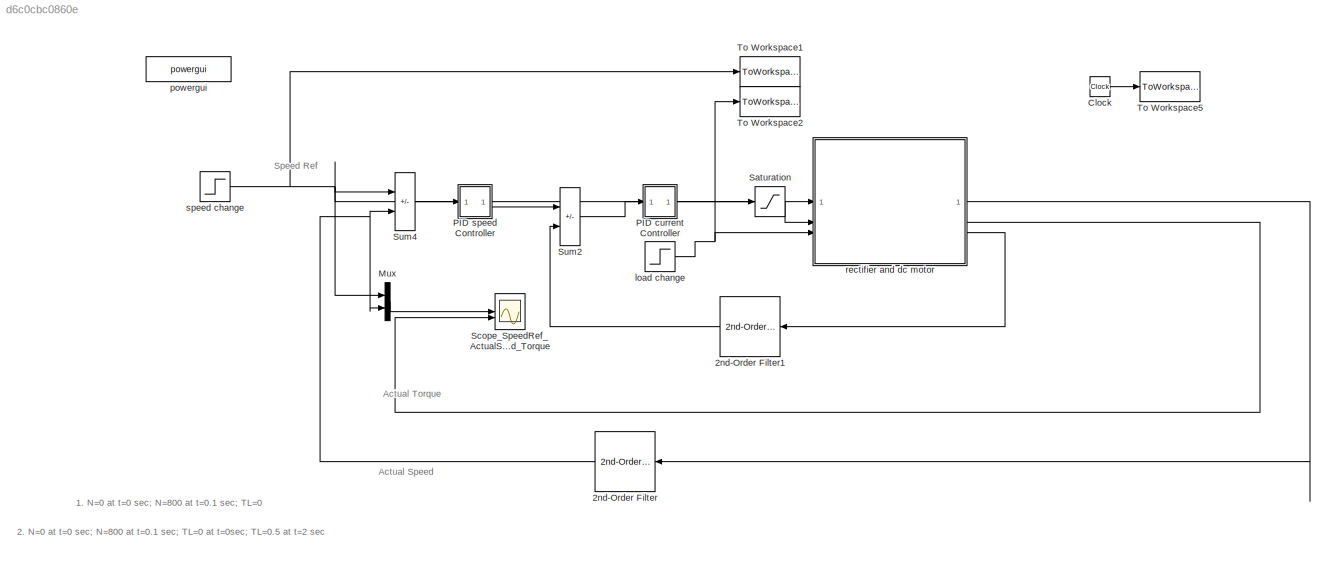
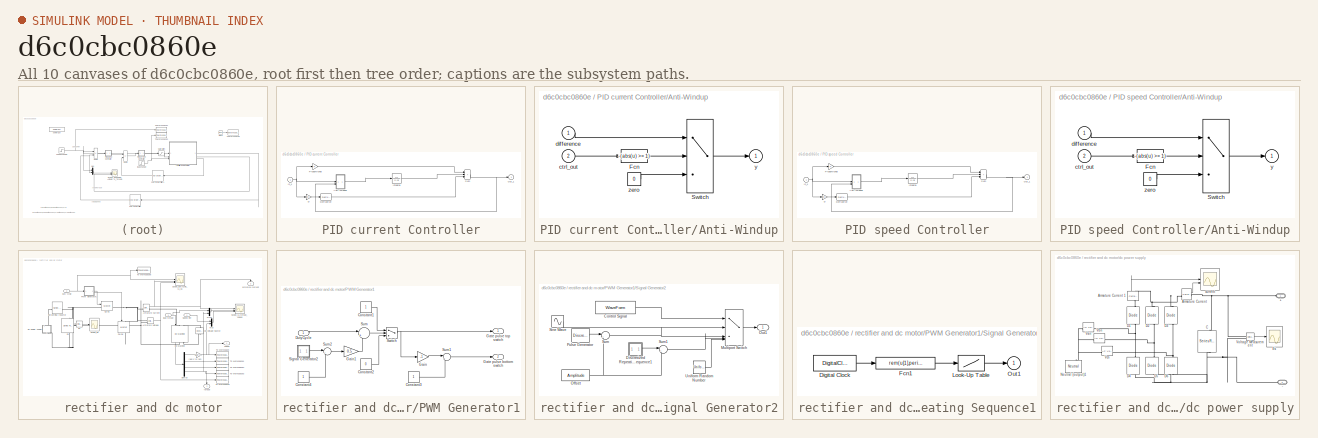
[diagram: thumbnail index - all 10 canvases of the model, root first then tree order]
MODEL slx_d6c0cbc0860e
KIND model
CONFIG AbsTol = auto
CONFIG EnableMultiTasking = on
CONFIG FixedStep = auto
CONFIG MaxStep = 10e-6
CONFIG MinStep = auto
CONFIG RelTol = 1e-1
CONFIG SampleTimeConstraint = Unconstrained
CONFIG SolverName = ode5
CONFIG StartTime = 0.0
CONFIG StopTime = 10
BLOCK [Reference] 2nd-Order Filter  REF=powerlib_extras/Control 
Blocks/2nd-Order
Filter
  SourceBlock = powerlib_extras/Control \nBlocks/2nd-Order\nFilter
  SourceType = 2nd-Order Filter
BLOCK [Reference] 2nd-Order Filter1  REF=powerlib_extras/Control 
Blocks/2nd-Order
Filter
  SourceBlock = powerlib_extras/Control \nBlocks/2nd-Order\nFilter
  SourceType = 2nd-Order Filter
BLOCK [Clock] Clock
  Decimation = 1
BLOCK [Mux] Mux
  DisplayOption = bar
  Inputs = 2
BLOCK [SubSystem] PID current Controller
  AncestorBlock = simulink_extras/Additional\nLinear/PID Controller
  LibrarySourceBlock = simulink_extras/Additional\nLinear/PID Controller
BLOCK [SubSystem] PID current Controller/Anti-Windup
  ShowPortLabels = none
BLOCK [Fcn] PID current Controller/Anti-Windup/Fcn
  Expr = -(abs(u) >= 1)
BLOCK [Switch] PID current Controller/Anti-Windup/Switch
BLOCK [Inport] PID current Controller/Anti-Windup/ctrl_out
  Port = 2
BLOCK [Inport] PID current Controller/Anti-Windup/difference
BLOCK [Outport] PID current Controller/Anti-Windup/y
  VectorParamsAs1DForOutWhenUnconnected = off
BLOCK [Constant] PID current Controller/Anti-Windup/zero
  Value = 0
BLOCK [Gain] PID current Controller/D
  Gain = D
  OutDataTypeStr = Inherit: Same as input
  ParamDataTypeStr = Inherit: Same as input
  SaturateOnIntegerOverflow = on
BLOCK [Derivative] PID current Controller/Derivative
BLOCK [Inport] PID current Controller/In_1
BLOCK [TransferFcn] PID current Controller/Integral
  Denominator = [1 0]
  Numerator = [I]
BLOCK [Outport] PID current Controller/Out_1
  InitialOutput = 0
  VectorParamsAs1DForOutWhenUnconnected = off
BLOCK [Gain] PID current Controller/Proportional
  Gain = P
  OutDataTypeStr = Inherit: Same as input
  ParamDataTypeStr = Inherit: Same as input
  SaturateOnIntegerOverflow = on
BLOCK [Sum] PID current Controller/Sum
  IconShape = rectangular
  InputSameDT = on
  Inputs = +++
  OutDataTypeStr = Inherit: Same as first input
  SaturateOnIntegerOverflow = on
BLOCK [SubSystem] PID speed Controller
  AncestorBlock = simulink_extras/Additional\nLinear/PID Controller
  LibrarySourceBlock = simulink_extras/Additional\nLinear/PID Controller
BLOCK [SubSystem] PID speed Controller/Anti-Windup
  ShowPortLabels = none
BLOCK [Fcn] PID speed Controller/Anti-Windup/Fcn
  Expr = -(abs(u) >= 1)
BLOCK [Switch] PID speed Controller/Anti-Windup/Switch
BLOCK [Inport] PID speed Controller/Anti-Windup/ctrl_out
  Port = 2
BLOCK [Inport] PID speed Controller/Anti-Windup/difference
BLOCK [Outport] PID speed Controller/Anti-Windup/y
  VectorParamsAs1DForOutWhenUnconnected = off
BLOCK [Constant] PID speed Controller/Anti-Windup/zero
  Value = 0
BLOCK [Gain] PID speed Controller/D
  Gain = D
  OutDataTypeStr = Inherit: Same as input
  ParamDataTypeStr = Inherit: Same as input
  SaturateOnIntegerOverflow = on
BLOCK [Derivative] PID speed Controller/Derivative
BLOCK [Inport] PID speed Controller/In_1
BLOCK [TransferFcn] PID speed Controller/Integral
  Denominator = [1 0]
  Numerator = [I]
BLOCK [Outport] PID speed Controller/Out_1
  InitialOutput = 0
  VectorParamsAs1DForOutWhenUnconnected = off
BLOCK [Gain] PID speed Controller/Proportional
  Gain = P
  OutDataTypeStr = Inherit: Same as input
  ParamDataTypeStr = Inherit: Same as input
  SaturateOnIntegerOverflow = on
BLOCK [Sum] PID speed Controller/Sum
  IconShape = rectangular
  InputSameDT = on
  Inputs = +++
  OutDataTypeStr = Inherit: Same as first input
  SaturateOnIntegerOverflow = on
BLOCK [Saturate] Saturation
  LowerLimit = 0
  UpperLimit = 1
BLOCK [Scope] Scope_SpeedRef_ActualSpeed_Torque
  Floating = off
  NumInputPorts = 2
  ScopeSpecificationString = Simulink.scopes.TimeScopeBlockCfg('CurrentConfiguration', extmgr.ConfigurationSet(extmgr.Configuration('Core','General UI',true),extmgr.Configuration('Core','Source UI',true),extmgr.Configuration('Sources','WiredSimulink',true,'DataLoggingVariableName','ScopeData4','DataLoggingSaveFormat','StructureWithTime','DataLoggingDecimation','1','DataLoggingDecimateData',true),extmgr.Configuration('Visuals'...<+2325ch>
BLOCK [Sum] Sum2
  IconShape = rectangular
  Inputs = +-
  SaturateOnIntegerOverflow = on
BLOCK [Sum] Sum4
  IconShape = rectangular
  Inputs = +-
  SaturateOnIntegerOverflow = on
BLOCK [ToWorkspace] To Workspace1
  MaxDataPoints = inf
  SampleTime = 2e-5
  VariableName = speedref_c
BLOCK [ToWorkspace] To Workspace2
  MaxDataPoints = inf
  SampleTime = 2e-5
  VariableName = torqueref_c
BLOCK [ToWorkspace] To Workspace5
  MaxDataPoints = inf
  SampleTime = 2e-5
  VariableName = time
BLOCK [Step] load change
  After = 0.5
  SampleTime = 0
  Time = 2
BLOCK [Reference] powergui  REF=spspowerguiLib/powergui
  Priority = 2
  SourceBlock = spspowerguiLib/powergui
  SourceType = PSB option menu block
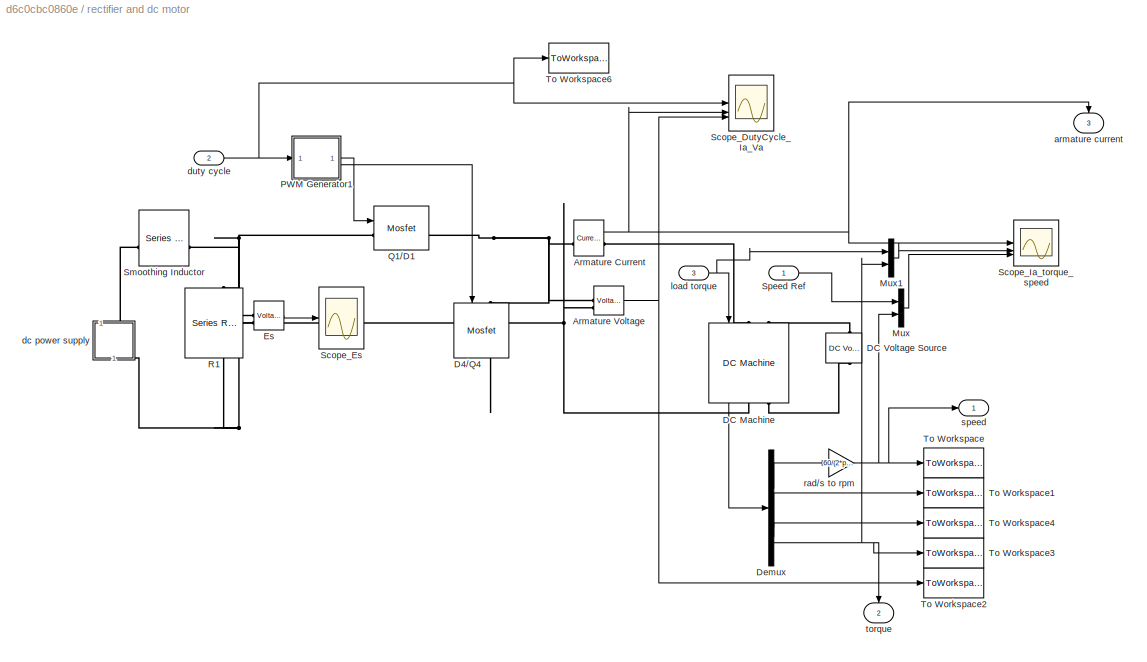
BLOCK [SubSystem] rectifier and dc motor
BLOCK [Reference] rectifier and dc motor/Armature Current   REF=spsCurrentMeasurementLib/Current Measurement
  AttributesFormatString = \n
  SourceBlock = spsCurrentMeasurementLib/Current Measurement
  SourceType = Current Measurement
  Tag = PoWeRsYsTeMmEaSuReMeNt
BLOCK [Reference] rectifier and dc motor/Armature Voltage  REF=spsVoltageMeasurementLib/Voltage Measurement
  AttributesFormatString = \n
  SourceBlock = spsVoltageMeasurementLib/Voltage Measurement
  SourceType = Voltage Measurement
  Tag = PoWeRsYsTeMmEaSuReMeNt
BLOCK [Reference] rectifier and dc motor/D4//Q4  REF=spsMosfetLib/Mosfet
  NameLocation = left
  SourceBlock = spsMosfetLib/Mosfet
  SourceType = Mosfet
BLOCK [Reference] rectifier and dc motor/DC Machine  REF=spsDCMachineLib/DC Machine
  AttributesFormatString = \n
  NameLocation = left
  SourceBlock = spsDCMachineLib/DC Machine
  SourceType = DC machine
BLOCK [Reference] rectifier and dc motor/DC Voltage Source  REF=spsDCVoltageSourceLib/DC Voltage Source
  AttributesFormatString = \n
  Description = source block
  NameLocation = left
  SourceBlock = spsDCVoltageSourceLib/DC Voltage Source
  SourceType = DC Voltage Source
BLOCK [Demux] rectifier and dc motor/Demux
  DisplayOption = none
BLOCK [Reference] rectifier and dc motor/Es  REF=spsVoltageMeasurementLib/Voltage Measurement
  AttributesFormatString = \n
  SourceBlock = spsVoltageMeasurementLib/Voltage Measurement
  SourceType = Voltage Measurement
  Tag = PoWeRsYsTeMmEaSuReMeNt
BLOCK [Mux] rectifier and dc motor/Mux
  DisplayOption = bar
  Inputs = 2
BLOCK [Mux] rectifier and dc motor/Mux1
  DisplayOption = bar
  Inputs = 2
BLOCK [SubSystem] rectifier and dc motor/PWM Generator1
BLOCK [Constant] rectifier and dc motor/PWM Generator1/Constant1
BLOCK [Constant] rectifier and dc motor/PWM Generator1/Constant2
  Value = 0
BLOCK [Constant] rectifier and dc motor/PWM Generator1/Constant3
BLOCK [Constant] rectifier and dc motor/PWM Generator1/Constant4
BLOCK [Inport] rectifier and dc motor/PWM Generator1/DutyCycle
BLOCK [Gain] rectifier and dc motor/PWM Generator1/Gain
  Gain = -1
  OutDataTypeStr = Inherit: Same as input
  ParamDataTypeStr = Inherit: Same as input
  SaturateOnIntegerOverflow = on
BLOCK [Gain] rectifier and dc motor/PWM Generator1/Gain1
  Gain = 0.5
  OutDataTypeStr = Inherit: Same as input
  ParamDataTypeStr = Inherit: Same as input
  SaturateOnIntegerOverflow = on
BLOCK [Outport] rectifier and dc motor/PWM Generator1/Gate pulse bottom switch
  Port = 2
  VectorParamsAs1DForOutWhenUnconnected = off
BLOCK [Outport] rectifier and dc motor/PWM Generator1/Gate pulse top switch
  VectorParamsAs1DForOutWhenUnconnected = off
BLOCK [SubSystem] rectifier and dc motor/PWM Generator1/Signal Generator2
BLOCK [Constant] rectifier and dc motor/PWM Generator1/Signal Generator2/Control Signal
  Value = WaveForm
BLOCK [SubSystem] rectifier and dc motor/PWM Generator1/Signal Generator2/Discretized Repeating Sequence1
  AncestorBlock = discretizing/Discretized\nRepeating Sequence
  LibrarySourceBlock = discretizing/Discretized\nRepeating Sequence
BLOCK [DigitalClock] rectifier and dc motor/PWM Generator1/Signal Generator2/Discretized Repeating Sequence1/Digital Clock
  SampleTime = SampleTime
BLOCK [Fcn] rectifier and dc motor/PWM Generator1/Signal Generator2/Discretized Repeating Sequence1/Fcn1
  Expr = rem(u[1],period)
BLOCK [Lookup] rectifier and dc motor/PWM Generator1/Signal Generator2/Discretized Repeating Sequence1/Look-Up Table
  InputValues = rep_seq_t
  Table = rep_seq_y
BLOCK [Outport] rectifier and dc motor/PWM Generator1/Signal Generator2/Discretized Repeating Sequence1/Out1
  VectorParamsAs1DForOutWhenUnconnected = off
BLOCK [MultiPortSwitch] rectifier and dc motor/PWM Generator1/Signal Generator2/Multiport Switch
  Inputs = 4
  SaturateOnIntegerOverflow = off
BLOCK [Constant] rectifier and dc motor/PWM Generator1/Signal Generator2/Offset
  Value = Amplitude
BLOCK [Outport] rectifier and dc motor/PWM Generator1/Signal Generator2/Out1
  VectorParamsAs1DForOutWhenUnconnected = off
BLOCK [DiscretePulseGenerator] rectifier and dc motor/PWM Generator1/Signal Generator2/Pulse Generator
  Amplitude = 2*Amplitude
  Period = PeriodSamples
  PhaseDelay = halfSamples
  PulseWidth = halfSamples
  SampleTime = st
BLOCK [Sin] rectifier and dc motor/PWM Generator1/Signal Generator2/Sine Wave
  Amplitude = Amplitude
  Frequency = frequencyRads
  SampleTime = SampleTime
BLOCK [Sum] rectifier and dc motor/PWM Generator1/Signal Generator2/Sum
  InputSameDT = on
  Inputs = |+-
  OutDataTypeStr = Inherit: Same as first input
  SaturateOnIntegerOverflow = on
BLOCK [Sum] rectifier and dc motor/PWM Generator1/Signal Generator2/Sum1
  InputSameDT = on
  Inputs = |++
  OutDataTypeStr = Inherit: Same as first input
  SaturateOnIntegerOverflow = on
BLOCK [UniformRandomNumber] rectifier and dc motor/PWM Generator1/Signal Generator2/Uniform Random Number
  Maximum = Amplitude
  Minimum = (-1)*Amplitude
  SampleTime = SampleTime
BLOCK [Sum] rectifier and dc motor/PWM Generator1/Sum
  Inputs = |+-
  SaturateOnIntegerOverflow = on
BLOCK [Sum] rectifier and dc motor/PWM Generator1/Sum1
  Inputs = |++
  SaturateOnIntegerOverflow = on
BLOCK [Sum] rectifier and dc motor/PWM Generator1/Sum2
  Inputs = |++
  SaturateOnIntegerOverflow = on
BLOCK [Switch] rectifier and dc motor/PWM Generator1/Switch
  Criteria = u2 > Threshold
  InputSameDT = off
BLOCK [Reference] rectifier and dc motor/Q1//D1  REF=spsMosfetLib/Mosfet
  SourceBlock = spsMosfetLib/Mosfet
  SourceType = Mosfet
BLOCK [Reference] rectifier and dc motor/R1  REF=spsSeriesRLCBranchLib/Series RLC Branch
  NameLocation = left
  SourceBlock = spsSeriesRLCBranchLib/Series RLC Branch
  SourceType = Series RLC Branch
BLOCK [Scope] rectifier and dc motor/Scope_DutyCycle_Ia_Va
  Floating = off
  NumInputPorts = 3
  ScopeSpecificationString = Simulink.scopes.TimeScopeBlockCfg('CurrentConfiguration', extmgr.ConfigurationSet(extmgr.Configuration('Core','General UI',true),extmgr.Configuration('Core','Source UI',true),extmgr.Configuration('Sources','WiredSimulink',true,'DataLoggingVariableName','ScopeData5','DataLoggingSaveFormat','StructureWithTime','DataLoggingDecimation','1','DataLoggingDecimateData',true),extmgr.Configuration('Visuals'...<+3026ch>
BLOCK [Scope] rectifier and dc motor/Scope_Es
  Floating = off
  NumInputPorts = 1
  ScopeSpecificationString = Simulink.scopes.TimeScopeBlockCfg('CurrentConfiguration', extmgr.ConfigurationSet(extmgr.Configuration('Core','General UI',true),extmgr.Configuration('Core','Source UI',true),extmgr.Configuration('Sources','WiredSimulink',true,'DataLoggingVariableName','ScopeData1','DataLoggingSaveFormat','StructureWithTime','DataLoggingDecimation','1','DataLoggingDecimateData',true),extmgr.Configuration('Visuals'...<+1622ch>
BLOCK [Scope] rectifier and dc motor/Scope_Ia_torque_speed
  Floating = off
  NumInputPorts = 3
  ScopeSpecificationString = Simulink.scopes.TimeScopeBlockCfg('CurrentConfiguration', extmgr.ConfigurationSet(extmgr.Configuration('Core','General UI',true),extmgr.Configuration('Core','Source UI',true),extmgr.Configuration('Sources','WiredSimulink',true,'DataLoggingVariableName','ScopeData3','DataLoggingSaveFormat','StructureWithTime','DataLoggingDecimation','1','DataLoggingDecimateData',true),extmgr.Configuration('Visuals'...<+3087ch>
BLOCK [Reference] rectifier and dc motor/Smoothing Inductor  REF=spsSeriesRLCBranchLib/Series RLC Branch
  NameLocation = top
  SourceBlock = spsSeriesRLCBranchLib/Series RLC Branch
  SourceType = Series RLC Branch
BLOCK [Inport] rectifier and dc motor/Speed Ref
BLOCK [ToWorkspace] rectifier and dc motor/To Workspace
  MaxDataPoints = inf
  SampleTime = 2e-5
  VariableName = Speed_c
BLOCK [ToWorkspace] rectifier and dc motor/To Workspace1
  MaxDataPoints = inf
  SampleTime = 2e-5
  VariableName = ia_c
BLOCK [ToWorkspace] rectifier and dc motor/To Workspace2
  MaxDataPoints = inf
  SampleTime = 2e-5
  VariableName = Voltage_c
BLOCK [ToWorkspace] rectifier and dc motor/To Workspace3
  MaxDataPoints = inf
  SampleTime = 2e-5
  VariableName = Torque_c
BLOCK [ToWorkspace] rectifier and dc motor/To Workspace4
  MaxDataPoints = inf
  SampleTime = 2e-5
  VariableName = if_c
BLOCK [ToWorkspace] rectifier and dc motor/To Workspace6
  MaxDataPoints = inf
  SampleTime = 2e-5
  VariableName = dutycycle_c
BLOCK [Outport] rectifier and dc motor/armature current
  NameLocation = left
  Port = 3
  VectorParamsAs1DForOutWhenUnconnected = off
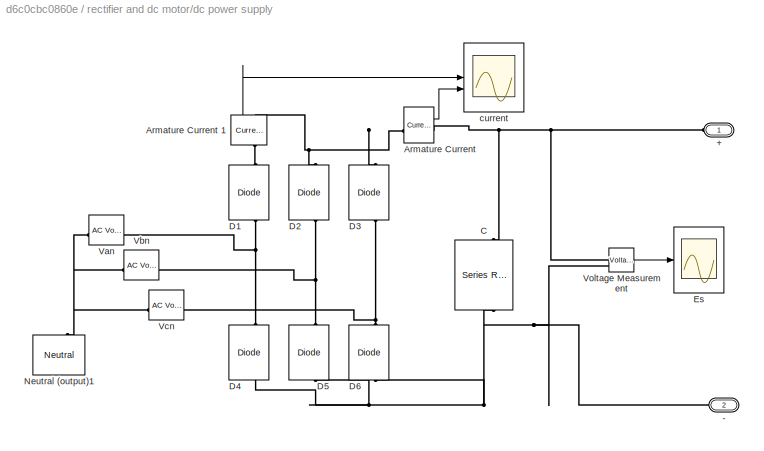
BLOCK [SubSystem] rectifier and dc motor/dc power supply
  NameLocation = left
BLOCK [PMIOPort] rectifier and dc motor/dc power supply/+
  Side = Left
BLOCK [PMIOPort] rectifier and dc motor/dc power supply/-
  Port = 2
  Side = Right
BLOCK [Reference] rectifier and dc motor/dc power supply/Armature Current   REF=spsCurrentMeasurementLib/Current Measurement
  AttributesFormatString = \n
  SourceBlock = spsCurrentMeasurementLib/Current Measurement
  SourceType = Current Measurement
  Tag = PoWeRsYsTeMmEaSuReMeNt
BLOCK [Reference] rectifier and dc motor/dc power supply/Armature Current 1  REF=spsCurrentMeasurementLib/Current Measurement
  AttributesFormatString = \n
  NameLocation = left
  SourceBlock = spsCurrentMeasurementLib/Current Measurement
  SourceType = Current Measurement
  Tag = PoWeRsYsTeMmEaSuReMeNt
BLOCK [Reference] rectifier and dc motor/dc power supply/C  REF=spsSeriesRLCBranchLib/Series RLC Branch
  NameLocation = left
  SourceBlock = spsSeriesRLCBranchLib/Series RLC Branch
  SourceType = Series RLC Branch
BLOCK [Reference] rectifier and dc motor/dc power supply/D1  REF=spsDiodeLib/Diode
  NameLocation = left
  SourceBlock = spsDiodeLib/Diode
  SourceType = Diode
BLOCK [Reference] rectifier and dc motor/dc power supply/D2  REF=spsDiodeLib/Diode
  NameLocation = left
  SourceBlock = spsDiodeLib/Diode
  SourceType = Diode
BLOCK [Reference] rectifier and dc motor/dc power supply/D3  REF=spsDiodeLib/Diode
  NameLocation = left
  SourceBlock = spsDiodeLib/Diode
  SourceType = Diode
BLOCK [Reference] rectifier and dc motor/dc power supply/D4  REF=spsDiodeLib/Diode
  NameLocation = left
  SourceBlock = spsDiodeLib/Diode
  SourceType = Diode
BLOCK [Reference] rectifier and dc motor/dc power supply/D5  REF=spsDiodeLib/Diode
  NameLocation = left
  SourceBlock = spsDiodeLib/Diode
  SourceType = Diode
BLOCK [Reference] rectifier and dc motor/dc power supply/D6  REF=spsDiodeLib/Diode
  NameLocation = left
  SourceBlock = spsDiodeLib/Diode
  SourceType = Diode
BLOCK [Scope] rectifier and dc motor/dc power supply/Es
  Floating = off
  NumInputPorts = 1
  ScopeSpecificationString = Simulink.scopes.TimeScopeBlockCfg('CurrentConfiguration', extmgr.ConfigurationSet(extmgr.Configuration('Core','General UI',true),extmgr.Configuration('Core','Source UI',true),extmgr.Configuration('Sources','WiredSimulink',true,'DataLoggingVariableName','ScopeData4','DataLoggingSaveFormat','StructureWithTime','DataLoggingDecimation','1','DataLoggingDecimateData',true),extmgr.Configuration('Visuals'...<+1607ch>
BLOCK [Reference] rectifier and dc motor/dc power supply/Neutral (output)1  REF=spsNeutralLib/Neutral
  AttributesFormatString = node %<NodeNumber>
  NameLocation = right
  SourceBlock = spsNeutralLib/Neutral
  SourceType = Neutral
BLOCK [Reference] rectifier and dc motor/dc power supply/Van  REF=spsACVoltageSourceLib/AC Voltage Source
  AttributesFormatString = \n
  Description = source block
  SourceBlock = spsACVoltageSourceLib/AC Voltage Source
  SourceType = AC Voltage Source
BLOCK [Reference] rectifier and dc motor/dc power supply/Vbn  REF=spsACVoltageSourceLib/AC Voltage Source
  AttributesFormatString = \n
  Description = source block
  SourceBlock = spsACVoltageSourceLib/AC Voltage Source
  SourceType = AC Voltage Source
BLOCK [Reference] rectifier and dc motor/dc power supply/Vcn  REF=spsACVoltageSourceLib/AC Voltage Source
  AttributesFormatString = \n
  Description = source block
  SourceBlock = spsACVoltageSourceLib/AC Voltage Source
  SourceType = AC Voltage Source
BLOCK [Reference] rectifier and dc motor/dc power supply/Voltage Measurement  REF=spsVoltageMeasurementLib/Voltage Measurement
  SourceBlock = spsVoltageMeasurementLib/Voltage Measurement
  SourceType = Voltage Measurement
BLOCK [Scope] rectifier and dc motor/dc power supply/current
  Floating = off
  NumInputPorts = 2
  ScopeSpecificationString = Simulink.scopes.TimeScopeBlockCfg('CurrentConfiguration', extmgr.ConfigurationSet(extmgr.Configuration('Core','General UI',true),extmgr.Configuration('Core','Source UI',true),extmgr.Configuration('Sources','WiredSimulink',true,'DataLoggingVariableName','ScopeData2','DataLoggingSaveFormat','StructureWithTime','DataLoggingDecimation','1','DataLoggingDecimateData',true),extmgr.Configuration('Visuals'...<+2309ch>
BLOCK [Inport] rectifier and dc motor/duty cycle
  Port = 2
BLOCK [Inport] rectifier and dc motor/load torque
  Port = 3
BLOCK [Gain] rectifier and dc motor/rad//s to rpm
  Gain = 60/(2*pi)
  OutDataTypeStr = Inherit: Same as input
  ParamDataTypeStr = Inherit: Same as input
  SaturateOnIntegerOverflow = on
BLOCK [Outport] rectifier and dc motor/speed
  VectorParamsAs1DForOutWhenUnconnected = off
BLOCK [Outport] rectifier and dc motor/torque
  NameLocation = left
  Port = 2
  VectorParamsAs1DForOutWhenUnconnected = off
BLOCK [Step] speed change
  After = 800
  SampleTime = 0
  Time = 0.1
ANNOTATION (root): 1. N=0 at t=0 sec; N=800 at t=0.1 sec; TL=0
ANNOTATION (root): 2. N=0 at t=0 sec; N=800 at t=0.1 sec; TL=0 at t=0sec; TL=0.5 at t=2 sec
ANNOTATION (root): Actual Speed
ANNOTATION (root): Actual Torque
ANNOTATION (root): Speed Ref
LINE 2nd-Order Filter1:1 -> Sum2:2
NET 2nd-Order Filter:1 -> Mux:2, Sum4:2
LINE Clock:1 -> To Workspace5:1
LINE Mux:1 -> Scope_SpeedRef_ActualSpeed_Torque:1
LINE PID current Controller:1 -> Saturation:1
LINE PID speed Controller:1 -> Sum2:1
LINE Saturation:1 -> rectifier and dc motor:2
LINE Sum2:1 -> PID current Controller:1
LINE Sum4:1 -> PID speed Controller:1
NET load change:1 -> To Workspace2:1, rectifier and dc motor:3
NET rectifier and dc motor/Armature Current :1 -> rectifier and dc motor/Scope_DutyCycle_Ia_Va:2, rectifier and dc motor/Scope_Ia_torque_speed:1, rectifier and dc motor/armature current:1
NET rectifier and dc motor/Armature Voltage:1 -> rectifier and dc motor/Scope_DutyCycle_Ia_Va:3, rectifier and dc motor/To Workspace2:1
LINE rectifier and dc motor/DC Machine:1 -> rectifier and dc motor/Demux:1
LINE rectifier and dc motor/Demux:1 -> rectifier and dc motor/rad//s to rpm:1
LINE rectifier and dc motor/Demux:2 -> rectifier and dc motor/To Workspace1:1
LINE rectifier and dc motor/Demux:3 -> rectifier and dc motor/To Workspace4:1
NET rectifier and dc motor/Demux:4 -> rectifier and dc motor/Mux1:2, rectifier and dc motor/To Workspace3:1, rectifier and dc motor/torque:1
LINE rectifier and dc motor/Es:1 -> rectifier and dc motor/Scope_Es:1
LINE rectifier and dc motor/Mux1:1 -> rectifier and dc motor/Scope_Ia_torque_speed:2
LINE rectifier and dc motor/Mux:1 -> rectifier and dc motor/Scope_Ia_torque_speed:3
LINE rectifier and dc motor/PWM Generator1/Constant1:1 -> rectifier and dc motor/PWM Generator1/Switch:1
LINE rectifier and dc motor/PWM Generator1/Constant2:1 -> rectifier and dc motor/PWM Generator1/Switch:3
LINE rectifier and dc motor/PWM Generator1/Constant3:1 -> rectifier and dc motor/PWM Generator1/Sum1:2
LINE rectifier and dc motor/PWM Generator1/Constant4:1 -> rectifier and dc motor/PWM Generator1/Sum2:2
LINE rectifier and dc motor/PWM Generator1/DutyCycle:1 -> rectifier and dc motor/PWM Generator1/Sum:1
LINE rectifier and dc motor/PWM Generator1/Gain1:1 -> rectifier and dc motor/PWM Generator1/Sum:2
LINE rectifier and dc motor/PWM Generator1/Gain:1 -> rectifier and dc motor/PWM Generator1/Sum1:1
LINE rectifier and dc motor/PWM Generator1/Signal Generator2:1 -> rectifier and dc motor/PWM Generator1/Sum2:1
LINE rectifier and dc motor/PWM Generator1/Sum1:1 -> rectifier and dc motor/PWM Generator1/Gate pulse bottom switch:1
LINE rectifier and dc motor/PWM Generator1/Sum2:1 -> rectifier and dc motor/PWM Generator1/Gain1:1
LINE rectifier and dc motor/PWM Generator1/Sum:1 -> rectifier and dc motor/PWM Generator1/Switch:2
NET rectifier and dc motor/PWM Generator1/Switch:1 -> rectifier and dc motor/PWM Generator1/Gain:1, rectifier and dc motor/PWM Generator1/Gate pulse top switch:1
LINE rectifier and dc motor/PWM Generator1:1 -> rectifier and dc motor/Q1//D1:1
LINE rectifier and dc motor/PWM Generator1:2 -> rectifier and dc motor/D4//Q4:1
LINE rectifier and dc motor/Speed Ref:1 -> rectifier and dc motor/Mux:1
LINE rectifier and dc motor/dc power supply/Armature Current 1:1 -> rectifier and dc motor/dc power supply/current:1
LINE rectifier and dc motor/dc power supply/Armature Current :1 -> rectifier and dc motor/dc power supply/current:2
LINE rectifier and dc motor/dc power supply/Voltage Measurement:1 -> rectifier and dc motor/dc power supply/Es:1
NET rectifier and dc motor/duty cycle:1 -> rectifier and dc motor/PWM Generator1:1, rectifier and dc motor/Scope_DutyCycle_Ia_Va:1, rectifier and dc motor/To Workspace6:1
NET rectifier and dc motor/load torque:1 -> rectifier and dc motor/DC Machine:1, rectifier and dc motor/Mux1:1
NET rectifier and dc motor/rad//s to rpm:1 -> rectifier and dc motor/Mux:2, rectifier and dc motor/To Workspace:1, rectifier and dc motor/speed:1
LINE rectifier and dc motor:1 -> 2nd-Order Filter:1
LINE rectifier and dc motor:2 -> Scope_SpeedRef_ActualSpeed_Torque:2
LINE rectifier and dc motor:3 -> 2nd-Order Filter1:1
NET speed change:1 -> Mux:1, Sum4:1, To Workspace1:1, rectifier and dc motor:1
PNET net1: rectifier and dc motor/Armature Current :LConn1 -- rectifier and dc motor/Armature Voltage:LConn1 -- rectifier and dc motor/D4//Q4:LConn1 -- rectifier and dc motor/Q1//D1:RConn1
PLINE rectifier and dc motor/Armature Current :RConn1 -- rectifier and dc motor/DC Machine:LConn1
PNET net2: rectifier and dc motor/Armature Voltage:LConn2 -- rectifier and dc motor/D4//Q4:RConn1 -- rectifier and dc motor/DC Machine:RConn1 -- rectifier and dc motor/Es:LConn2 -- rectifier and dc motor/R1:RConn1 -- rectifier and dc motor/dc power supply:RConn1
PLINE rectifier and dc motor/DC Machine:LConn2 -- rectifier and dc motor/DC Voltage Source:RConn1
PLINE rectifier and dc motor/DC Machine:RConn2 -- rectifier and dc motor/DC Voltage Source:LConn1
PNET net3: rectifier and dc motor/Es:LConn1 -- rectifier and dc motor/Q1//D1:LConn1 -- rectifier and dc motor/R1:LConn1 -- rectifier and dc motor/Smoothing Inductor:RConn1
PLINE rectifier and dc motor/Smoothing Inductor:LConn1 -- rectifier and dc motor/dc power supply:LConn1
PNET net4: rectifier and dc motor/dc power supply/+:RConn1 -- rectifier and dc motor/dc power supply/Armature Current :RConn1 -- rectifier and dc motor/dc power supply/C:LConn1 -- rectifier and dc motor/dc power supply/Voltage Measurement:LConn1
PNET net5: rectifier and dc motor/dc power supply/-:RConn1 -- rectifier and dc motor/dc power supply/C:RConn1 -- rectifier and dc motor/dc power supply/D4:LConn1 -- rectifier and dc motor/dc power supply/D5:LConn1 -- rectifier and dc motor/dc power supply/D6:LConn1 -- rectifier and dc motor/dc power supply/Voltage Measurement:LConn2
PLINE rectifier and dc motor/dc power supply/Armature Current 1:LConn1 -- rectifier and dc motor/dc power supply/D1:RConn1
PNET net6: rectifier and dc motor/dc power supply/Armature Current 1:RConn1 -- rectifier and dc motor/dc power supply/Armature Current :LConn1 -- rectifier and dc motor/dc power supply/D2:RConn1 -- rectifier and dc motor/dc power supply/D3:RConn1
PNET net7: rectifier and dc motor/dc power supply/D1:LConn1 -- rectifier and dc motor/dc power supply/D4:RConn1 -- rectifier and dc motor/dc power supply/Van:RConn1
PNET net8: rectifier and dc motor/dc power supply/D2:LConn1 -- rectifier and dc motor/dc power supply/D5:RConn1 -- rectifier and dc motor/dc power supply/Vbn:RConn1
PNET net9: rectifier and dc motor/dc power supply/D3:LConn1 -- rectifier and dc motor/dc power supply/D6:RConn1 -- rectifier and dc motor/dc power supply/Vcn:RConn1
PNET net10: rectifier and dc motor/dc power supply/Neutral (output)1:LConn1 -- rectifier and dc motor/dc power supply/Van:LConn1 -- rectifier and dc motor/dc power supply/Vbn:LConn1 -- rectifier and dc motor/dc power supply/Vcn:LConn1
note: NET lines group one-source signal fan-out (src -> all destinations, sorted); 1:1 wires keep LINE; PNET lines group multi-terminal physical nets as a canonical sorted terminal list (undirected conserving connections); 2-terminal nets keep the pairwise PLINE form
